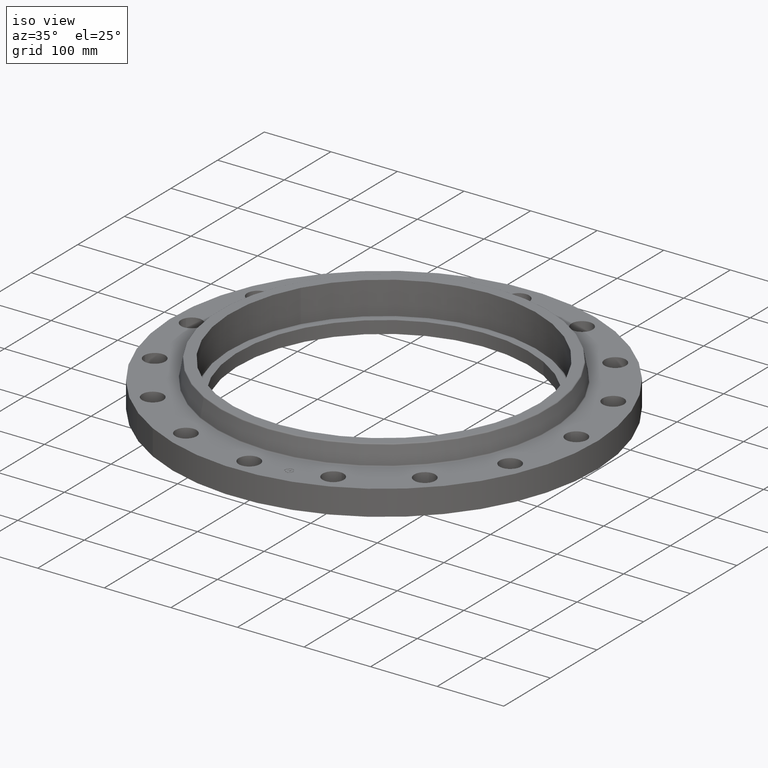
[diagram: clean part render]
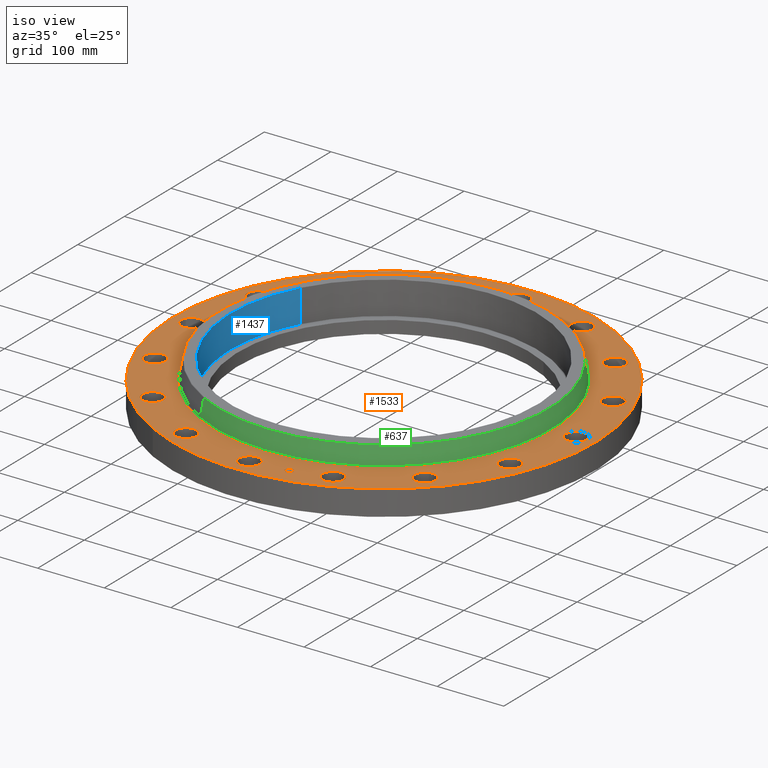
[diagram: same view with three faces highlighted in distinct colors, each labeled with its STEP entity id]
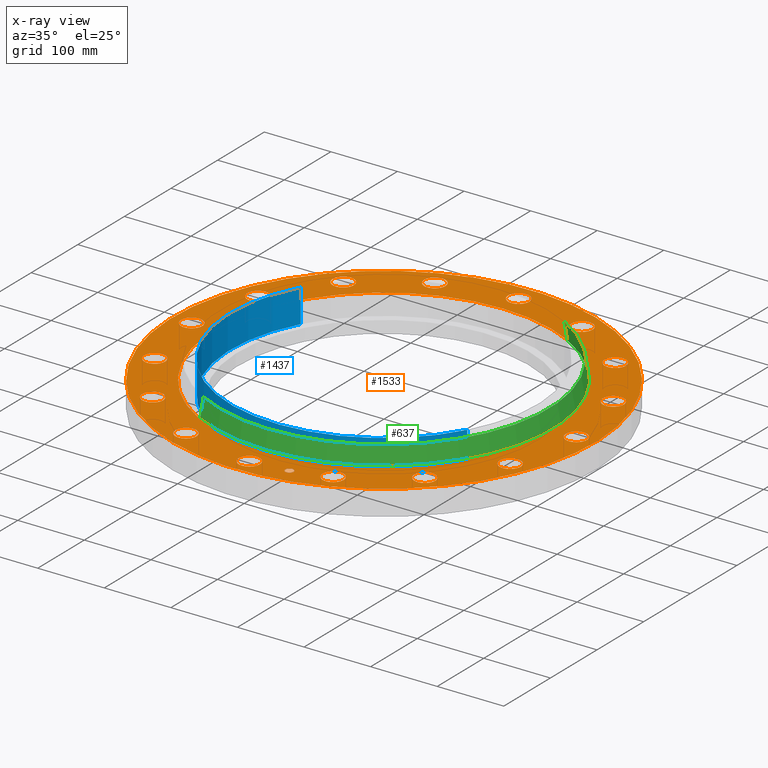
[diagram: x-ray of the same camera — body ghosted, the three highlighted faces saturated]
A machine part, iso view with three faces highlighted in distinct colors.
The next image is the same camera in x-ray (body ghosted, the three faces saturated) — at least one of them is partly hidden behind the body in this view.
Their STEP definitions:

[orange] entity #1533 — the highlighted planar face has unit normal (0, 0, -1).
#521=AXIS2_PLACEMENT_3D('Circle Axis2P3D',#519,#520,$) ;
#540=AXIS2_PLACEMENT_3D('Circle Axis2P3D',#538,#539,$) ;
#557=AXIS2_PLACEMENT_3D('Circle Axis2P3D',#555,#556,$) ;
#592=AXIS2_PLACEMENT_3D('Circle Axis2P3D',#590,#591,$) ;
#742=AXIS2_PLACEMENT_3D('Circle Axis2P3D',#740,#741,$) ;
#754=AXIS2_PLACEMENT_3D('Circle Axis2P3D',#752,#753,$) ;
#785=AXIS2_PLACEMENT_3D('Circle Axis2P3D',#783,#784,$) ;
#797=AXIS2_PLACEMENT_3D('Circle Axis2P3D',#795,#796,$) ;
#828=AXIS2_PLACEMENT_3D('Circle Axis2P3D',#826,#827,$) ;
#840=AXIS2_PLACEMENT_3D('Circle Axis2P3D',#838,#839,$) ;
#871=AXIS2_PLACEMENT_3D('Circle Axis2P3D',#869,#870,$) ;
#883=AXIS2_PLACEMENT_3D('Circle Axis2P3D',#881,#882,$) ;
#914=AXIS2_PLACEMENT_3D('Circle Axis2P3D',#912,#913,$) ;
#926=AXIS2_PLACEMENT_3D('Circle Axis2P3D',#924,#925,$) ;
#957=AXIS2_PLACEMENT_3D('Circle Axis2P3D',#955,#956,$) ;
#969=AXIS2_PLACEMENT_3D('Circle Axis2P3D',#967,#968,$) ;
#1000=AXIS2_PLACEMENT_3D('Circle Axis2P3D',#998,#999,$) ;
#1012=AXIS2_PLACEMENT_3D('Circle Axis2P3D',#1010,#1011,$) ;
#1043=AXIS2_PLACEMENT_3D('Circle Axis2P3D',#1041,#1042,$) ;
#1055=AXIS2_PLACEMENT_3D('Circle Axis2P3D',#1053,#1054,$) ;
#1086=AXIS2_PLACEMENT_3D('Circle Axis2P3D',#1084,#1085,$) ;
#1098=AXIS2_PLACEMENT_3D('Circle Axis2P3D',#1096,#1097,$) ;
#1129=AXIS2_PLACEMENT_3D('Circle Axis2P3D',#1127,#1128,$) ;
#1141=AXIS2_PLACEMENT_3D('Circle Axis2P3D',#1139,#1140,$) ;
#1172=AXIS2_PLACEMENT_3D('Circle Axis2P3D',#1170,#1171,$) ;
#1184=AXIS2_PLACEMENT_3D('Circle Axis2P3D',#1182,#1183,$) ;
#1215=AXIS2_PLACEMENT_3D('Circle Axis2P3D',#1213,#1214,$) ;
#1227=AXIS2_PLACEMENT_3D('Circle Axis2P3D',#1225,#1226,$) ;
#1258=AXIS2_PLACEMENT_3D('Circle Axis2P3D',#1256,#1257,$) ;
#1270=AXIS2_PLACEMENT_3D('Circle Axis2P3D',#1268,#1269,$) ;
#1301=AXIS2_PLACEMENT_3D('Circle Axis2P3D',#1299,#1300,$) ;
#1313=AXIS2_PLACEMENT_3D('Circle Axis2P3D',#1311,#1312,$) ;
#1344=AXIS2_PLACEMENT_3D('Circle Axis2P3D',#1342,#1343,$) ;
#1356=AXIS2_PLACEMENT_3D('Circle Axis2P3D',#1354,#1355,$) ;
#1387=AXIS2_PLACEMENT_3D('Circle Axis2P3D',#1385,#1386,$) ;
#1399=AXIS2_PLACEMENT_3D('Circle Axis2P3D',#1397,#1398,$) ;
#1441=AXIS2_PLACEMENT_3D('Plane Axis2P3D',#1438,#1439,#1440) ;
#1517=AXIS2_PLACEMENT_3D('Circle Axis2P3D',#1515,#1516,$) ;
#1526=AXIS2_PLACEMENT_3D('Circle Axis2P3D',#1524,#1525,$) ;
#516=CARTESIAN_POINT('Vertex',(-5.99281923258,-10.9697820237,1.50000000001)) ;
#519=CARTESIAN_POINT('Axis2P3D Location',(0.,0.,1.50000000001)) ;
#523=CARTESIAN_POINT('Vertex',(5.99281923258,10.9697820237,1.50000000001)) ;
#538=CARTESIAN_POINT('Axis2P3D Location',(0.,0.,1.50000000001)) ;
#555=CARTESIAN_POINT('Axis2P3D Location',(0.,0.,1.50000000001)) ;
#559=CARTESIAN_POINT('Vertex',(4.7896270013,8.76735341747,1.50000000001)) ;
#561=CARTESIAN_POINT('Vertex',(-4.7896270013,-8.76735341747,1.50000000001)) ;
#590=CARTESIAN_POINT('Axis2P3D Location',(0.,0.,1.50000000001)) ;
#730=CARTESIAN_POINT('Vertex',(11.1305351684,4.28608958348,1.50000000001)) ;
#737=CARTESIAN_POINT('Vertex',(9.8877241963,4.41995850287,1.50000000001)) ;
#740=CARTESIAN_POINT('Axis2P3D Location',(10.5091296824,4.35302404317,1.50000000001)) ;
#752=CARTESIAN_POINT('Axis2P3D Location',(10.5091296824,4.35302404317,1.50000000001)) ;
#773=CARTESIAN_POINT('Vertex',(8.64305815477,8.21930184299,1.50000000001)) ;
#780=CARTESIAN_POINT('Vertex',(7.44362111729,7.86737742906,1.50000000001)) ;
#783=CARTESIAN_POINT('Axis2P3D Location',(8.04333963603,8.04333963603,1.50000000001)) ;
#795=CARTESIAN_POINT('Axis2P3D Location',(8.04333963603,8.04333963603,1.50000000001)) ;
#816=CARTESIAN_POINT('Vertex',(4.83975388658,10.9011999051,1.50000000001)) ;
#823=CARTESIAN_POINT('Vertex',(3.86629419976,10.1170594596,1.50000000001)) ;
#826=CARTESIAN_POINT('Axis2P3D Location',(4.35302404317,10.5091296824,1.50000000001)) ;
#838=CARTESIAN_POINT('Axis2P3D Location',(4.35302404317,10.5091296824,1.50000000001)) ;
#859=CARTESIAN_POINT('Vertex',(0.299640961629,11.9234891012,1.50000000001)) ;
#866=CARTESIAN_POINT('Vertex',(-0.299640961629,10.8265108989,1.50000000001)) ;
#869=CARTESIAN_POINT('Axis2P3D Location',(-2.08955360105E-015,11.375,1.50000000001)) ;
#881=CARTESIAN_POINT('Axis2P3D Location',(-2.08955360105E-015,11.375,1.50000000001)) ;
#902=CARTESIAN_POINT('Vertex',(-4.28608958348,11.1305351684,1.50000000001)) ;
#909=CARTESIAN_POINT('Vertex',(-4.41995850287,9.8877241963,1.50000000001)) ;
#912=CARTESIAN_POINT('Axis2P3D Location',(-4.35302404317,10.5091296824,1.50000000001)) ;
#924=CARTESIAN_POINT('Axis2P3D Location',(-4.35302404317,10.5091296824,1.50000000001)) ;
#945=CARTESIAN_POINT('Vertex',(-8.21930184299,8.64305815477,1.50000000001)) ;
#952=CARTESIAN_POINT('Vertex',(-7.86737742906,7.44362111729,1.50000000001)) ;
#955=CARTESIAN_POINT('Axis2P3D Location',(-8.04333963603,8.04333963603,1.50000000001)) ;
#967=CARTESIAN_POINT('Axis2P3D Location',(-8.04333963603,8.04333963603,1.50000000001)) ;
#988=CARTESIAN_POINT('Vertex',(-10.9011999051,4.83975388658,1.50000000001)) ;
#995=CARTESIAN_POINT('Vertex',(-10.1170594596,3.86629419976,1.50000000001)) ;
#998=CARTESIAN_POINT('Axis2P3D Location',(-10.5091296824,4.35302404317,1.50000000001)) ;
#1010=CARTESIAN_POINT('Axis2P3D Location',(-10.5091296824,4.35302404317,1.50000000001)) ;
#1031=CARTESIAN_POINT('Vertex',(-11.9234891012,0.299640961629,1.50000000001)) ;
#1038=CARTESIAN_POINT('Vertex',(-10.8265108989,-0.299640961629,1.50000000001)) ;
#1041=CARTESIAN_POINT('Axis2P3D Location',(-11.375,-1.39303573404E-015,1.50000000001)) ;
#1053=CARTESIAN_POINT('Axis2P3D Location',(-11.375,-1.39303573404E-015,1.50000000001)) ;
#1074=CARTESIAN_POINT('Vertex',(-11.1305351684,-4.28608958348,1.50000000001)) ;
#1081=CARTESIAN_POINT('Vertex',(-9.8877241963,-4.41995850287,1.50000000001)) ;
#1084=CARTESIAN_POINT('Axis2P3D Location',(-10.5091296824,-4.35302404317,1.50000000001)) ;
#1096=CARTESIAN_POINT('Axis2P3D Location',(-10.5091296824,-4.35302404317,1.50000000001)) ;
#1117=CARTESIAN_POINT('Vertex',(-8.64305815477,-8.21930184299,1.50000000001)) ;
#1124=CARTESIAN_POINT('Vertex',(-7.44362111729,-7.86737742906,1.50000000001)) ;
#1127=CARTESIAN_POINT('Axis2P3D Location',(-8.04333963603,-8.04333963603,1.50000000001)) ;
#1139=CARTESIAN_POINT('Axis2P3D Location',(-8.04333963603,-8.04333963603,1.50000000001)) ;
#1160=CARTESIAN_POINT('Vertex',(-4.83975388658,-10.9011999051,1.50000000001)) ;
#1167=CARTESIAN_POINT('Vertex',(-3.86629419976,-10.1170594596,1.50000000001)) ;
#1170=CARTESIAN_POINT('Axis2P3D Location',(-4.35302404317,-10.5091296824,1.50000000001)) ;
#1182=CARTESIAN_POINT('Axis2P3D Location',(-4.35302404317,-10.5091296824,1.50000000001)) ;
#1203=CARTESIAN_POINT('Vertex',(-0.299640961629,-11.9234891012,1.50000000001)) ;
#1210=CARTESIAN_POINT('Vertex',(0.299640961629,-10.8265108989,1.50000000001)) ;
#1213=CARTESIAN_POINT('Axis2P3D Location',(-1.54141200939E-015,-11.375,1.50000000001)) ;
#1225=CARTESIAN_POINT('Axis2P3D Location',(-1.54141200939E-015,-11.375,1.50000000001)) ;
#1246=CARTESIAN_POINT('Vertex',(4.28608958348,-11.1305351684,1.50000000001)) ;
#1253=CARTESIAN_POINT('Vertex',(4.41995850287,-9.8877241963,1.50000000001)) ;
#1256=CARTESIAN_POINT('Axis2P3D Location',(4.35302404317,-10.5091296824,1.50000000001)) ;
#1268=CARTESIAN_POINT('Axis2P3D Location',(4.35302404317,-10.5091296824,1.50000000001)) ;
#1289=CARTESIAN_POINT('Vertex',(8.21930184299,-8.64305815477,1.50000000001)) ;
#1296=CARTESIAN_POINT('Vertex',(7.86737742906,-7.44362111729,1.50000000001)) ;
#1299=CARTESIAN_POINT('Axis2P3D Location',(8.04333963603,-8.04333963603,1.50000000001)) ;
#1311=CARTESIAN_POINT('Axis2P3D Location',(8.04333963603,-8.04333963603,1.50000000001)) ;
#1332=CARTESIAN_POINT('Vertex',(10.9011999051,-4.83975388658,1.50000000001)) ;
#1339=CARTESIAN_POINT('Vertex',(10.1170594596,-3.86629419976,1.50000000001)) ;
#1342=CARTESIAN_POINT('Axis2P3D Location',(10.5091296824,-4.35302404317,1.50000000001)) ;
#1354=CARTESIAN_POINT('Axis2P3D Location',(10.5091296824,-4.35302404317,1.50000000001)) ;
#1375=CARTESIAN_POINT('Vertex',(10.8265108989,0.299640961629,1.50000000001)) ;
#1382=CARTESIAN_POINT('Vertex',(11.9234891012,-0.299640961629,1.50000000001)) ;
#1385=CARTESIAN_POINT('Axis2P3D Location',(11.375,0.,1.50000000001)) ;
#1397=CARTESIAN_POINT('Axis2P3D Location',(11.375,0.,1.50000000001)) ;
#1438=CARTESIAN_POINT('Axis2P3D Location',(0.,12.5000000001,1.50000000001)) ;
#1515=CARTESIAN_POINT('Axis2P3D Location',(2.21915241294,-11.1564325646,1.50000000001)) ;
#1519=CARTESIAN_POINT('Vertex',(2.46189676984,-11.1081477099,1.50000000001)) ;
#1521=CARTESIAN_POINT('Vertex',(1.97640805604,-11.2047174193,1.50000000001)) ;
#1524=CARTESIAN_POINT('Axis2P3D Location',(2.21915241294,-11.1564325646,1.50000000001)) ;
#520=DIRECTION('Axis2P3D Direction',(0.,0.,-0.0393700787402)) ;
#539=DIRECTION('Axis2P3D Direction',(0.,0.,-0.0393700787402)) ;
#556=DIRECTION('Axis2P3D Direction',(0.,0.,-0.0393700787402)) ;
#591=DIRECTION('Axis2P3D Direction',(0.,0.,-0.0393700787402)) ;
#741=DIRECTION('Axis2P3D Direction',(0.,0.,-0.0393700787402)) ;
#753=DIRECTION('Axis2P3D Direction',(0.,0.,-0.0393700787402)) ;
#784=DIRECTION('Axis2P3D Direction',(0.,0.,-0.0393700787402)) ;
#796=DIRECTION('Axis2P3D Direction',(0.,0.,-0.0393700787402)) ;
#827=DIRECTION('Axis2P3D Direction',(0.,0.,-0.0393700787402)) ;
#839=DIRECTION('Axis2P3D Direction',(0.,0.,-0.0393700787402)) ;
#870=DIRECTION('Axis2P3D Direction',(0.,0.,-0.0393700787402)) ;
#882=DIRECTION('Axis2P3D Direction',(0.,0.,-0.0393700787402)) ;
#913=DIRECTION('Axis2P3D Direction',(0.,0.,-0.0393700787402)) ;
#925=DIRECTION('Axis2P3D Direction',(0.,0.,-0.0393700787402)) ;
#956=DIRECTION('Axis2P3D Direction',(0.,0.,-0.0393700787402)) ;
#968=DIRECTION('Axis2P3D Direction',(0.,0.,-0.0393700787402)) ;
#999=DIRECTION('Axis2P3D Direction',(0.,0.,-0.0393700787402)) ;
#1011=DIRECTION('Axis2P3D Direction',(0.,0.,-0.0393700787402)) ;
#1042=DIRECTION('Axis2P3D Direction',(-0.,0.,-0.0393700787402)) ;
#1054=DIRECTION('Axis2P3D Direction',(-0.,0.,-0.0393700787402)) ;
#1085=DIRECTION('Axis2P3D Direction',(-0.,0.,-0.0393700787402)) ;
#1097=DIRECTION('Axis2P3D Direction',(-0.,0.,-0.0393700787402)) ;
#1128=DIRECTION('Axis2P3D Direction',(-0.,0.,-0.0393700787402)) ;
#1140=DIRECTION('Axis2P3D Direction',(-0.,0.,-0.0393700787402)) ;
#1171=DIRECTION('Axis2P3D Direction',(-0.,0.,-0.0393700787402)) ;
#1183=DIRECTION('Axis2P3D Direction',(-0.,0.,-0.0393700787402)) ;
#1214=DIRECTION('Axis2P3D Direction',(0.,-0.,-0.0393700787402)) ;
#1226=DIRECTION('Axis2P3D Direction',(0.,-0.,-0.0393700787402)) ;
#1257=DIRECTION('Axis2P3D Direction',(0.,-0.,-0.0393700787402)) ;
#1269=DIRECTION('Axis2P3D Direction',(0.,-0.,-0.0393700787402)) ;
#1300=DIRECTION('Axis2P3D Direction',(0.,-0.,-0.0393700787402)) ;
#1312=DIRECTION('Axis2P3D Direction',(0.,-0.,-0.0393700787402)) ;
#1343=DIRECTION('Axis2P3D Direction',(0.,-0.,-0.0393700787402)) ;
#1355=DIRECTION('Axis2P3D Direction',(0.,-0.,-0.0393700787402)) ;
#1386=DIRECTION('Axis2P3D Direction',(0.,-0.,-0.0393700787402)) ;
#1398=DIRECTION('Axis2P3D Direction',(0.,-0.,-0.0393700787402)) ;
#1439=DIRECTION('Axis2P3D Direction',(0.,0.,-0.0393700787402)) ;
#1440=DIRECTION('Axis2P3D XDirection',(0.0393700787402,0.,0.)) ;
#1516=DIRECTION('Axis2P3D Direction',(0.,0.,-0.0393700787402)) ;
#1525=DIRECTION('Axis2P3D Direction',(0.,0.,-0.0393700787402)) ;
#1444=ORIENTED_EDGE('',*,*,#542,.F.) ;
#1445=ORIENTED_EDGE('',*,*,#525,.F.) ;
#1448=ORIENTED_EDGE('',*,*,#1389,.T.) ;
#1449=ORIENTED_EDGE('',*,*,#1401,.T.) ;
#1452=ORIENTED_EDGE('',*,*,#594,.T.) ;
#1453=ORIENTED_EDGE('',*,*,#563,.T.) ;
#1456=ORIENTED_EDGE('',*,*,#1346,.T.) ;
#1457=ORIENTED_EDGE('',*,*,#1358,.T.) ;
#1460=ORIENTED_EDGE('',*,*,#1303,.T.) ;
#1461=ORIENTED_EDGE('',*,*,#1315,.T.) ;
#1464=ORIENTED_EDGE('',*,*,#1260,.T.) ;
#1465=ORIENTED_EDGE('',*,*,#1272,.T.) ;
#1468=ORIENTED_EDGE('',*,*,#1217,.T.) ;
#1469=ORIENTED_EDGE('',*,*,#1229,.T.) ;
#1472=ORIENTED_EDGE('',*,*,#1174,.T.) ;
#1473=ORIENTED_EDGE('',*,*,#1186,.T.) ;
#1476=ORIENTED_EDGE('',*,*,#1131,.T.) ;
#1477=ORIENTED_EDGE('',*,*,#1143,.T.) ;
#1480=ORIENTED_EDGE('',*,*,#1088,.T.) ;
#1481=ORIENTED_EDGE('',*,*,#1100,.T.) ;
#1484=ORIENTED_EDGE('',*,*,#1045,.T.) ;
#1485=ORIENTED_EDGE('',*,*,#1057,.T.) ;
#1488=ORIENTED_EDGE('',*,*,#1002,.T.) ;
#1489=ORIENTED_EDGE('',*,*,#1014,.T.) ;
#1492=ORIENTED_EDGE('',*,*,#959,.T.) ;
#1493=ORIENTED_EDGE('',*,*,#971,.T.) ;
#1496=ORIENTED_EDGE('',*,*,#916,.T.) ;
#1497=ORIENTED_EDGE('',*,*,#928,.T.) ;
#1500=ORIENTED_EDGE('',*,*,#873,.T.) ;
#1501=ORIENTED_EDGE('',*,*,#885,.T.) ;
#1504=ORIENTED_EDGE('',*,*,#830,.T.) ;
#1505=ORIENTED_EDGE('',*,*,#842,.T.) ;
#1508=ORIENTED_EDGE('',*,*,#787,.T.) ;
#1509=ORIENTED_EDGE('',*,*,#799,.T.) ;
#1512=ORIENTED_EDGE('',*,*,#744,.T.) ;
#1513=ORIENTED_EDGE('',*,*,#756,.T.) ;
#1530=ORIENTED_EDGE('',*,*,#1523,.T.) ;
#1531=ORIENTED_EDGE('',*,*,#1528,.T.) ;
#1450=FACE_BOUND('',#1447,.T.) ;
#1454=FACE_BOUND('',#1451,.T.) ;
#1458=FACE_BOUND('',#1455,.T.) ;
#1462=FACE_BOUND('',#1459,.T.) ;
#1466=FACE_BOUND('',#1463,.T.) ;
#1470=FACE_BOUND('',#1467,.T.) ;
#1474=FACE_BOUND('',#1471,.T.) ;
#1478=FACE_BOUND('',#1475,.T.) ;
#1482=FACE_BOUND('',#1479,.T.) ;
#1486=FACE_BOUND('',#1483,.T.) ;
#1490=FACE_BOUND('',#1487,.T.) ;
#1494=FACE_BOUND('',#1491,.T.) ;
#1498=FACE_BOUND('',#1495,.T.) ;
#1502=FACE_BOUND('',#1499,.T.) ;
#1506=FACE_BOUND('',#1503,.T.) ;
#1510=FACE_BOUND('',#1507,.T.) ;
#1514=FACE_BOUND('',#1511,.T.) ;
#1532=FACE_BOUND('',#1529,.T.) ;
#1533=ADVANCED_FACE('PartBody',(#1446,#1450,#1454,#1458,#1462,#1466,#1470,#1474,#1478,#1482,#1486,#1490,#1494,#1498,#1502,#1506,#1510,#1514,#1532),#1442,.F.) ;
#522=CIRCLE('generated circle',#521,12.5000000001) ;
#541=CIRCLE('generated circle',#540,12.5000000001) ;
#558=CIRCLE('generated circle',#557,9.99034597791) ;
#593=CIRCLE('generated circle',#592,9.99034597791) ;
#743=CIRCLE('generated circle',#742,0.625000000002) ;
#755=CIRCLE('generated circle',#754,0.625000000002) ;
#786=CIRCLE('generated circle',#785,0.625000000002) ;
#798=CIRCLE('generated circle',#797,0.625000000002) ;
#829=CIRCLE('generated circle',#828,0.625000000002) ;
#841=CIRCLE('generated circle',#840,0.625000000002) ;
#872=CIRCLE('generated circle',#871,0.625000000002) ;
#884=CIRCLE('generated circle',#883,0.625000000002) ;
#915=CIRCLE('generated circle',#914,0.625000000002) ;
#927=CIRCLE('generated circle',#926,0.625000000002) ;
#958=CIRCLE('generated circle',#957,0.625000000002) ;
#970=CIRCLE('generated circle',#969,0.625000000002) ;
#1001=CIRCLE('generated circle',#1000,0.625000000002) ;
#1013=CIRCLE('generated circle',#1012,0.625000000002) ;
#1044=CIRCLE('generated circle',#1043,0.625000000003) ;
#1056=CIRCLE('generated circle',#1055,0.625000000003) ;
#1087=CIRCLE('generated circle',#1086,0.625000000002) ;
#1099=CIRCLE('generated circle',#1098,0.625000000002) ;
#1130=CIRCLE('generated circle',#1129,0.625000000002) ;
#1142=CIRCLE('generated circle',#1141,0.625000000002) ;
#1173=CIRCLE('generated circle',#1172,0.625000000002) ;
#1185=CIRCLE('generated circle',#1184,0.625000000002) ;
#1216=CIRCLE('generated circle',#1215,0.625000000002) ;
#1228=CIRCLE('generated circle',#1227,0.625000000002) ;
#1259=CIRCLE('generated circle',#1258,0.625000000002) ;
#1271=CIRCLE('generated circle',#1270,0.625000000002) ;
#1302=CIRCLE('generated circle',#1301,0.625000000002) ;
#1314=CIRCLE('generated circle',#1313,0.625000000002) ;
#1345=CIRCLE('generated circle',#1344,0.625000000002) ;
#1357=CIRCLE('generated circle',#1356,0.625000000002) ;
#1388=CIRCLE('generated circle',#1387,0.625000000002) ;
#1400=CIRCLE('generated circle',#1399,0.625000000002) ;
#1518=CIRCLE('generated circle',#1517,0.247500000001) ;
#1527=CIRCLE('generated circle',#1526,0.247500000001) ;
#525=EDGE_CURVE('',#517,#524,#522,.T.) ;
#542=EDGE_CURVE('',#524,#517,#541,.T.) ;
#563=EDGE_CURVE('',#560,#562,#558,.T.) ;
#594=EDGE_CURVE('',#562,#560,#593,.T.) ;
#744=EDGE_CURVE('',#731,#738,#743,.T.) ;
#756=EDGE_CURVE('',#738,#731,#755,.T.) ;
#787=EDGE_CURVE('',#774,#781,#786,.T.) ;
#799=EDGE_CURVE('',#781,#774,#798,.T.) ;
#830=EDGE_CURVE('',#817,#824,#829,.T.) ;
#842=EDGE_CURVE('',#824,#817,#841,.T.) ;
#873=EDGE_CURVE('',#860,#867,#872,.T.) ;
#885=EDGE_CURVE('',#867,#860,#884,.T.) ;
#916=EDGE_CURVE('',#903,#910,#915,.T.) ;
#928=EDGE_CURVE('',#910,#903,#927,.T.) ;
#959=EDGE_CURVE('',#946,#953,#958,.T.) ;
#971=EDGE_CURVE('',#953,#946,#970,.T.) ;
#1002=EDGE_CURVE('',#989,#996,#1001,.T.) ;
#1014=EDGE_CURVE('',#996,#989,#1013,.T.) ;
#1045=EDGE_CURVE('',#1032,#1039,#1044,.T.) ;
#1057=EDGE_CURVE('',#1039,#1032,#1056,.T.) ;
#1088=EDGE_CURVE('',#1075,#1082,#1087,.T.) ;
#1100=EDGE_CURVE('',#1082,#1075,#1099,.T.) ;
#1131=EDGE_CURVE('',#1118,#1125,#1130,.T.) ;
#1143=EDGE_CURVE('',#1125,#1118,#1142,.T.) ;
#1174=EDGE_CURVE('',#1161,#1168,#1173,.T.) ;
#1186=EDGE_CURVE('',#1168,#1161,#1185,.T.) ;
#1217=EDGE_CURVE('',#1204,#1211,#1216,.T.) ;
#1229=EDGE_CURVE('',#1211,#1204,#1228,.T.) ;
#1260=EDGE_CURVE('',#1247,#1254,#1259,.T.) ;
#1272=EDGE_CURVE('',#1254,#1247,#1271,.T.) ;
#1303=EDGE_CURVE('',#1290,#1297,#1302,.T.) ;
#1315=EDGE_CURVE('',#1297,#1290,#1314,.T.) ;
#1346=EDGE_CURVE('',#1333,#1340,#1345,.T.) ;
#1358=EDGE_CURVE('',#1340,#1333,#1357,.T.) ;
#1389=EDGE_CURVE('',#1376,#1383,#1388,.T.) ;
#1401=EDGE_CURVE('',#1383,#1376,#1400,.T.) ;
#1523=EDGE_CURVE('',#1520,#1522,#1518,.T.) ;
#1528=EDGE_CURVE('',#1522,#1520,#1527,.T.) ;
#1443=EDGE_LOOP('',(#1444,#1445)) ;
#1447=EDGE_LOOP('',(#1448,#1449)) ;
#1451=EDGE_LOOP('',(#1452,#1453)) ;
#1455=EDGE_LOOP('',(#1456,#1457)) ;
#1459=EDGE_LOOP('',(#1460,#1461)) ;
#1463=EDGE_LOOP('',(#1464,#1465)) ;
#1467=EDGE_LOOP('',(#1468,#1469)) ;
#1471=EDGE_LOOP('',(#1472,#1473)) ;
#1475=EDGE_LOOP('',(#1476,#1477)) ;
#1479=EDGE_LOOP('',(#1480,#1481)) ;
#1483=EDGE_LOOP('',(#1484,#1485)) ;
#1487=EDGE_LOOP('',(#1488,#1489)) ;
#1491=EDGE_LOOP('',(#1492,#1493)) ;
#1495=EDGE_LOOP('',(#1496,#1497)) ;
#1499=EDGE_LOOP('',(#1500,#1501)) ;
#1503=EDGE_LOOP('',(#1504,#1505)) ;
#1507=EDGE_LOOP('',(#1508,#1509)) ;
#1511=EDGE_LOOP('',(#1512,#1513)) ;
#1529=EDGE_LOOP('',(#1530,#1531)) ;
#1446=FACE_OUTER_BOUND('',#1443,.T.) ;
#1442=PLANE('',#1441) ;
#517=VERTEX_POINT('',#516) ;
#524=VERTEX_POINT('',#523) ;
#560=VERTEX_POINT('',#559) ;
#562=VERTEX_POINT('',#561) ;
#731=VERTEX_POINT('',#730) ;
#738=VERTEX_POINT('',#737) ;
#774=VERTEX_POINT('',#773) ;
#781=VERTEX_POINT('',#780) ;
#817=VERTEX_POINT('',#816) ;
#824=VERTEX_POINT('',#823) ;
#860=VERTEX_POINT('',#859) ;
#867=VERTEX_POINT('',#866) ;
#903=VERTEX_POINT('',#902) ;
#910=VERTEX_POINT('',#909) ;
#946=VERTEX_POINT('',#945) ;
#953=VERTEX_POINT('',#952) ;
#989=VERTEX_POINT('',#988) ;
#996=VERTEX_POINT('',#995) ;
#1032=VERTEX_POINT('',#1031) ;
#1039=VERTEX_POINT('',#1038) ;
#1075=VERTEX_POINT('',#1074) ;
#1082=VERTEX_POINT('',#1081) ;
#1118=VERTEX_POINT('',#1117) ;
#1125=VERTEX_POINT('',#1124) ;
#1161=VERTEX_POINT('',#1160) ;
#1168=VERTEX_POINT('',#1167) ;
#1204=VERTEX_POINT('',#1203) ;
#1211=VERTEX_POINT('',#1210) ;
#1247=VERTEX_POINT('',#1246) ;
#1254=VERTEX_POINT('',#1253) ;
#1290=VERTEX_POINT('',#1289) ;
#1297=VERTEX_POINT('',#1296) ;
#1333=VERTEX_POINT('',#1332) ;
#1340=VERTEX_POINT('',#1339) ;
#1376=VERTEX_POINT('',#1375) ;
#1383=VERTEX_POINT('',#1382) ;
#1520=VERTEX_POINT('',#1519) ;
#1522=VERTEX_POINT('',#1521) ;

[blue] entity #1437 — the highlighted cylindrical surface (partial cylindrical patch) has radius 230.886 mm, axis along (0, 0, -1).
#51=AXIS2_PLACEMENT_3D('Circle Axis2P3D',#49,#50,$) ;
#713=AXIS2_PLACEMENT_3D('Circle Axis2P3D',#711,#712,$) ;
#1412=AXIS2_PLACEMENT_3D('Cylinder Axis2P3D',#1409,#1410,#1411) ;
#44=CARTESIAN_POINT('Vertex',(-7.97722548762,4.35797814593,0.680000000003)) ;
#46=CARTESIAN_POINT('Vertex',(7.97722548762,-4.35797814593,0.680000000003)) ;
#49=CARTESIAN_POINT('Axis2P3D Location',(1.39870617276E-016,1.04902962957E-016,0.680000000003)) ;
#706=CARTESIAN_POINT('Vertex',(-7.97722548762,4.35797814593,2.62000000001)) ;
#708=CARTESIAN_POINT('Vertex',(7.97722548762,-4.35797814593,2.62000000001)) ;
#711=CARTESIAN_POINT('Axis2P3D Location',(2.79741234551E-016,0.,2.62000000001)) ;
#1409=CARTESIAN_POINT('Axis2P3D Location',(1.39870617276E-016,1.04902962957E-016,2.61606299214)) ;
#1414=CARTESIAN_POINT('Line Origine',(-7.97722548762,4.35797814593,1.65000000001)) ;
#1419=CARTESIAN_POINT('Line Origine',(7.97722548762,-4.35797814593,1.65000000001)) ;
#50=DIRECTION('Axis2P3D Direction',(0.,0.,-0.0393700787402)) ;
#712=DIRECTION('Axis2P3D Direction',(0.,0.,-0.0393700787402)) ;
#1410=DIRECTION('Axis2P3D Direction',(0.,0.,-0.0393700787402)) ;
#1411=DIRECTION('Axis2P3D XDirection',(0.0345504945626,-0.0188750212049,0.)) ;
#1415=DIRECTION('Vector Direction',(0.,0.,-0.0393700787402)) ;
#1420=DIRECTION('Vector Direction',(0.,0.,-0.0393700787402)) ;
#1416=VECTOR('Line Direction',#1415,0.0393700787402) ;
#1421=VECTOR('Line Direction',#1420,0.0393700787402) ;
#1432=ORIENTED_EDGE('',*,*,#715,.F.) ;
#1433=ORIENTED_EDGE('',*,*,#1423,.F.) ;
#1434=ORIENTED_EDGE('',*,*,#53,.T.) ;
#1435=ORIENTED_EDGE('',*,*,#1418,.T.) ;
#1437=ADVANCED_FACE('PartBody',(#1436),#1413,.F.) ;
#52=CIRCLE('generated circle',#51,9.09000000004) ;
#714=CIRCLE('generated circle',#713,9.09000000004) ;
#1413=CYLINDRICAL_SURFACE('generated cylinder',#1412,9.09000000004) ;
#53=EDGE_CURVE('',#47,#45,#52,.T.) ;
#715=EDGE_CURVE('',#709,#707,#714,.T.) ;
#1418=EDGE_CURVE('',#45,#707,#1417,.F.) ;
#1423=EDGE_CURVE('',#47,#709,#1422,.F.) ;
#1431=EDGE_LOOP('',(#1432,#1433,#1434,#1435)) ;
#1436=FACE_OUTER_BOUND('',#1431,.T.) ;
#1417=LINE('Line',#1414,#1416) ;
#1422=LINE('Line',#1419,#1421) ;
#45=VERTEX_POINT('',#44) ;
#47=VERTEX_POINT('',#46) ;
#707=VERTEX_POINT('',#706) ;
#709=VERTEX_POINT('',#708) ;

[green] entity #637 — the highlighted conical surface has half-angle 10 deg.
#573=AXIS2_PLACEMENT_3D('Circle Axis2P3D',#571,#572,$) ;
#610=AXIS2_PLACEMENT_3D('Cone Axis2P3D',#607,#608,#609) ;
#621=AXIS2_PLACEMENT_3D('Circle Axis2P3D',#619,#620,$) ;
#568=CARTESIAN_POINT('Vertex',(4.76129848206,8.71549841081,1.54958110935)) ;
#571=CARTESIAN_POINT('Axis2P3D Location',(0.,0.,1.54958110935)) ;
#575=CARTESIAN_POINT('Vertex',(-4.76129848206,-8.71549841081,1.54958110935)) ;
#607=CARTESIAN_POINT('Axis2P3D Location',(0.,0.,2.57041889067)) ;
#612=CARTESIAN_POINT('Line Origine',(4.71814988543,8.63651543449,2.06000000001)) ;
#616=CARTESIAN_POINT('Vertex',(4.67500128881,8.55753245816,2.57041889067)) ;
#619=CARTESIAN_POINT('Axis2P3D Location',(0.,0.,2.57041889067)) ;
#623=CARTESIAN_POINT('Vertex',(-4.67500128881,-8.55753245816,2.57041889067)) ;
#626=CARTESIAN_POINT('Line Origine',(-4.71814988543,-8.63651543449,2.06000000001)) ;
#572=DIRECTION('Axis2P3D Direction',(0.,0.,-0.0393700787402)) ;
#608=DIRECTION('Axis2P3D Direction',(0.,0.,-0.0393700787402)) ;
#609=DIRECTION('Axis2P3D XDirection',(-0.0188750212049,-0.0345504945626,0.)) ;
#613=DIRECTION('Vector Direction',(0.00327761303565,0.00599963041829,-0.03877195878)) ;
#620=DIRECTION('Axis2P3D Direction',(0.,0.,-0.0393700787402)) ;
#627=DIRECTION('Vector Direction',(-0.00327761303565,-0.00599963041829,-0.03877195878)) ;
#614=VECTOR('Line Direction',#613,0.0393700787402) ;
#628=VECTOR('Line Direction',#627,0.0393700787402) ;
#632=ORIENTED_EDGE('',*,*,#577,.F.) ;
#633=ORIENTED_EDGE('',*,*,#618,.T.) ;
#634=ORIENTED_EDGE('',*,*,#625,.T.) ;
#635=ORIENTED_EDGE('',*,*,#630,.F.) ;
#637=ADVANCED_FACE('PartBody',(#636),#611,.T.) ;
#574=CIRCLE('generated circle',#573,9.93125751273) ;
#622=CIRCLE('generated circle',#621,9.75125626896) ;
#611=CONICAL_SURFACE('Cone',#610,9.75125626896,0.174532925199) ;
#577=EDGE_CURVE('',#569,#576,#574,.T.) ;
#618=EDGE_CURVE('',#569,#617,#615,.F.) ;
#625=EDGE_CURVE('',#617,#624,#622,.T.) ;
#630=EDGE_CURVE('',#576,#624,#629,.F.) ;
#631=EDGE_LOOP('',(#632,#633,#634,#635)) ;
#636=FACE_OUTER_BOUND('',#631,.T.) ;
#615=LINE('Line',#612,#614) ;
#629=LINE('Line',#626,#628) ;
#569=VERTEX_POINT('',#568) ;
#576=VERTEX_POINT('',#575) ;
#617=VERTEX_POINT('',#616) ;
#624=VERTEX_POINT('',#623) ;